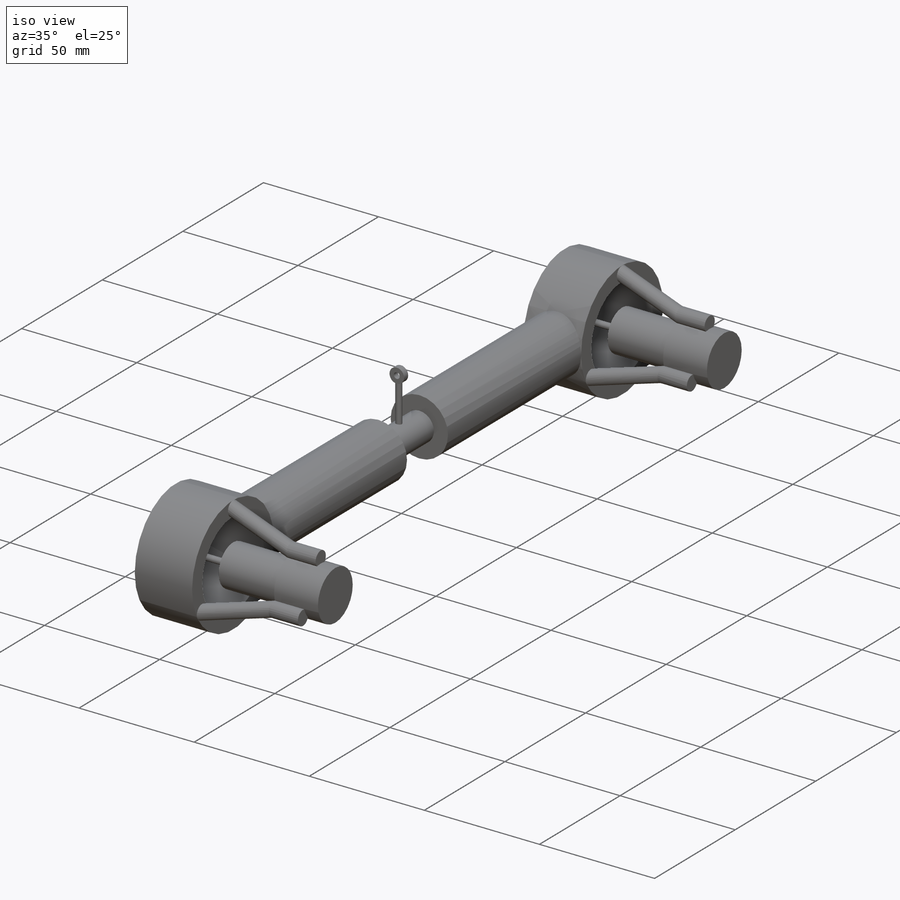
[diagram: iso view]
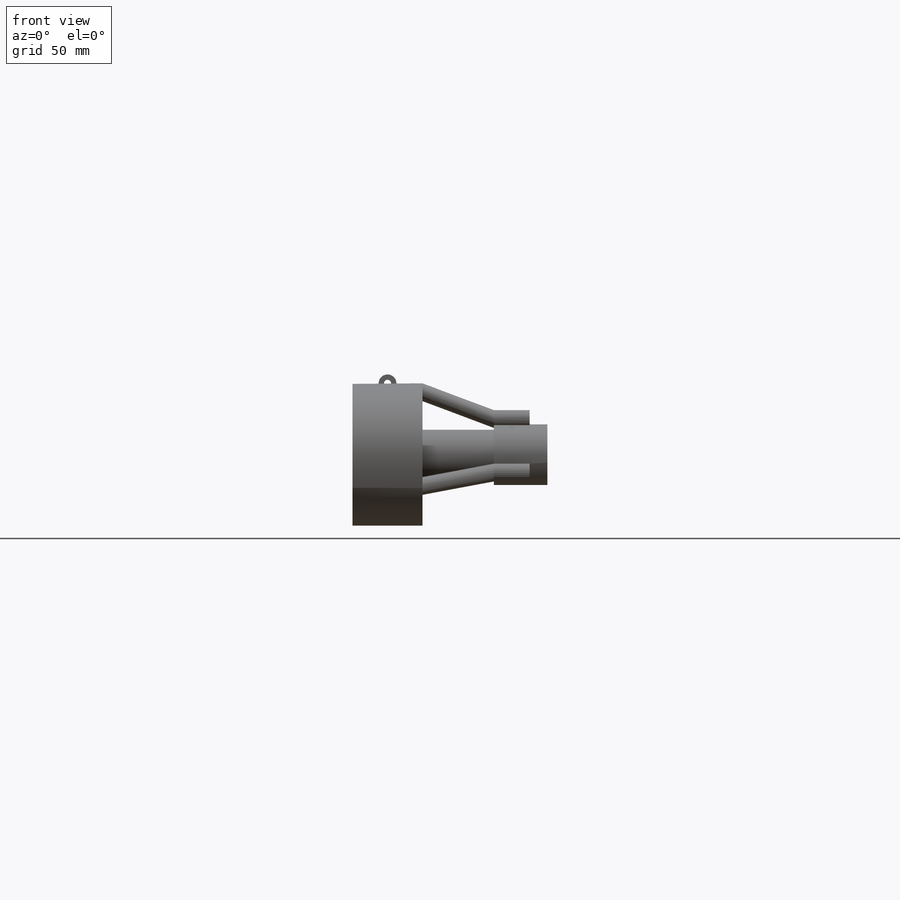
[diagram: front view]
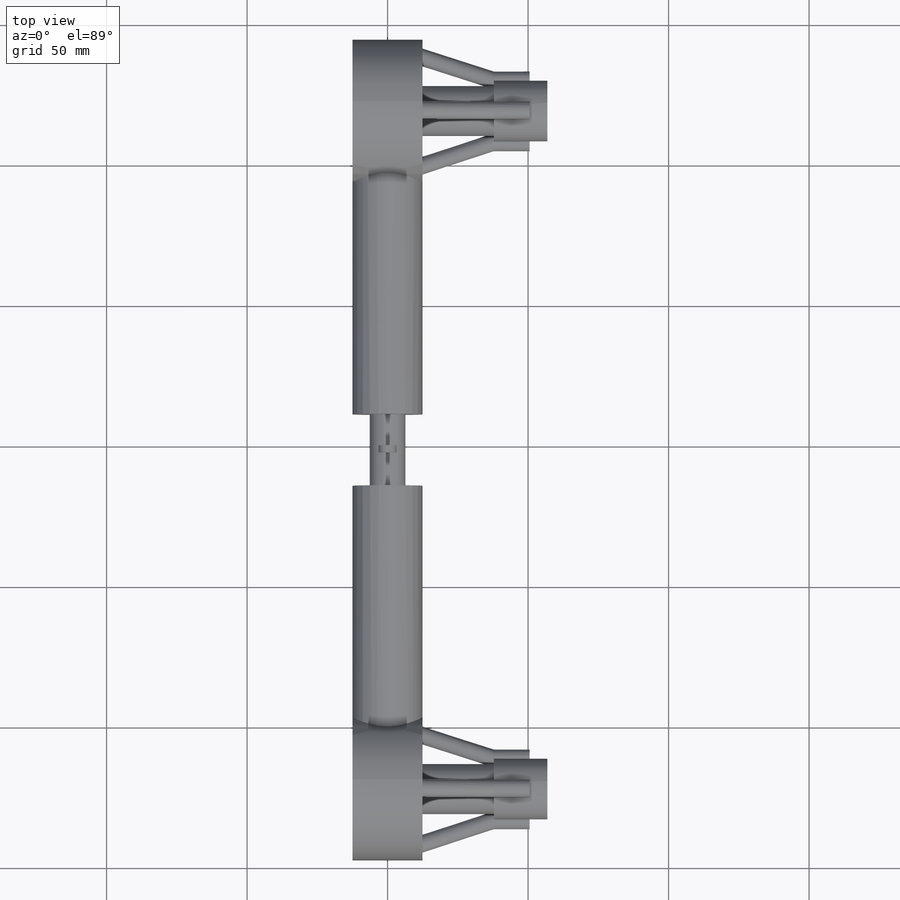
[diagram: top view]
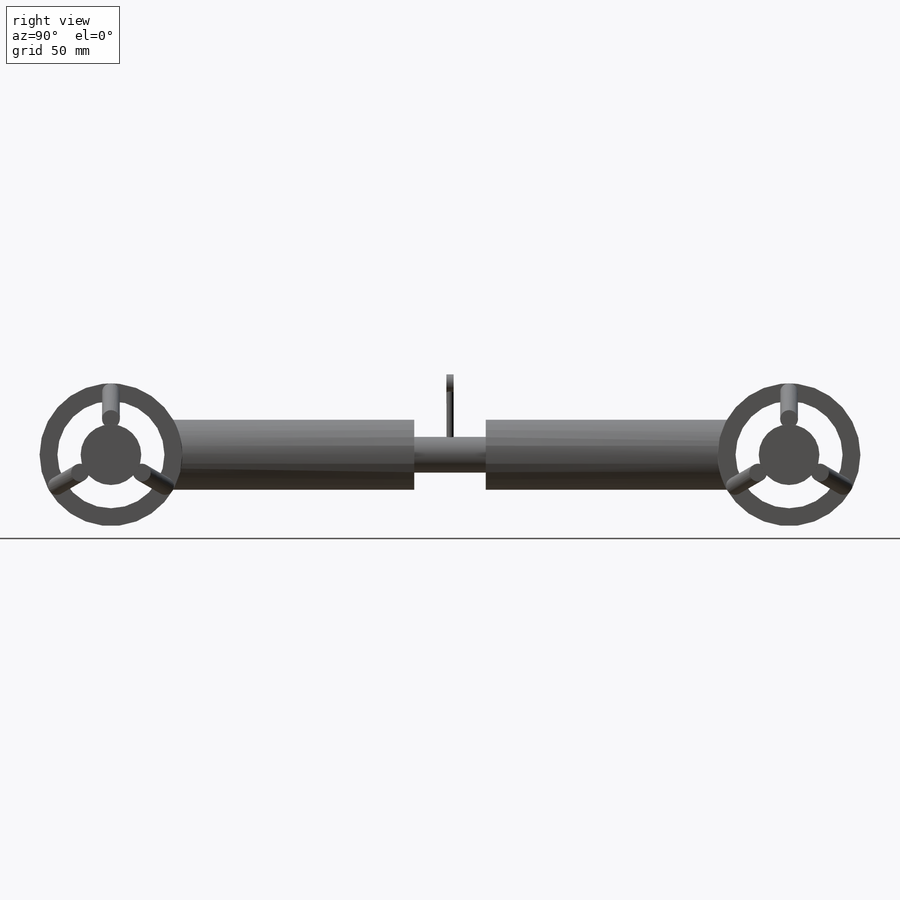
[diagram: right view]
SOLIDWORKS PART (.sldprt)
format: sldprt  version: not decoded by parser v0  size: 470,528 bytes
history: native  units: mm
features: sketch x13, extrude x8, plane x2, mirror x2, cut_extrude x2, material x1, revolve x1, pattern_circular x1 (+11 scaffold rows collapsed)
feature tree (41):
  scaffold x11  (default folders/planes/origin — collapsed)
  material  "Material <not specified>"
  sketch  "Sketch1"  dims[D1=12.7mm]
  extrude  "Boss-Extrude1"  Depth=203.2mm
  sketch  "Sketch2"  dims[D1=6.35mm D2=19.05mm]
  revolve  "Revolve1"  Angle=360deg
  plane  "Plane1"  Offset=101.6mm
  mirror  "Mirror1"
  sketch  "Sketch3"  dims[D1=22.225mm]
  plane  "Plane2"  Offset=25.4mm
  sketch  "Sketch4"  dims[c1.D1=~12.759397mm c1.D2=25.4mm c1.D3=31.75mm c2.D1=12.7mm c2.D2=3.0]
  pattern_circular  "CirPattern1"  Count=3 Angle=120deg
  sketch  "Sketch5"  dims[D1=21.59mm]
  extrude  "Boss-Extrude2"  Depth=12.7mm
  sketch  "Sketch6"  dims[D1=21.59mm]
  extrude  "Boss-Extrude3"  Depth=6.35mm
  sketch  "Sketch7"  dims[D1=17.78mm]
  extrude  "Boss-Extrude4"  Depth=38.1mm
  sketch  "Sketch8"  dims[D1=~1.349925mm]
  extrude  "Boss-Extrude5"  Depth=12.7mm
  sketch  "Sketch9"  dims[D1=24.892mm]
  cut_extrude  "Cut-Extrude1"  Depth=12.7mm
  sketch  "Sketch10"  dims[D1=12.7mm]
  extrude  "Boss-Extrude6"  Depth=25.4mm
  sketch  "Sketch12"  dims[D1=~1.374988mm]
  extrude  "Boss-Extrude7"  Depth=25.4mm
  sketch  "Sketch13"  dims[D1=~2.92501mm]
  extrude  "Boss-Extrude8"  Depth=1.27mm
  sketch  "Sketch14"  dims[D1=~1.360045mm]
  cut_extrude  "Cut-Extrude2"  Depth=2.54mm
  mirror  "Mirror3"
decode coverage: 25 of 27 modeling features carry decoded parameters
note: ~ marks probable driven/reference dimensions
note: suppression state not decoded; provenance and decode notes live in map.json
